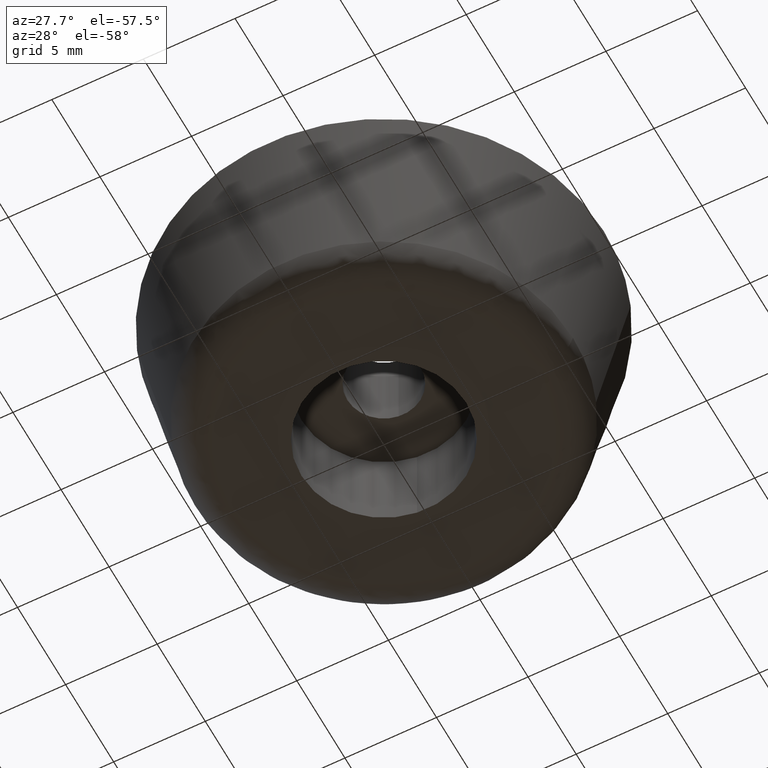
[diagram: clean part render]
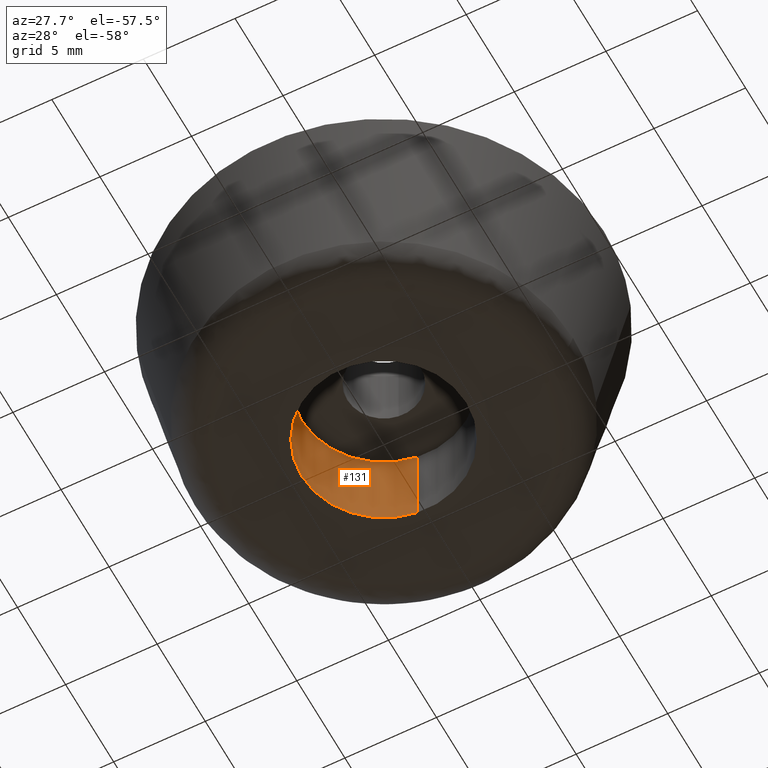
[diagram: same view with one face highlighted and labeled with its STEP entity id]
A machine part, auxiliary view. The second image highlights one B-rep face of the part: STEP entity #131.
In plain terms, the highlighted cylindrical surface (partial cylindrical patch) has radius 4.5 mm, axis along (-0, -0, 1).
Its self-contained STEP definition (entity closure, byte-faithful):
#131=ADVANCED_FACE('',(#329),#328,.F.);
#328=CYLINDRICAL_SURFACE('',#496,4.50000000000E+000);
#329=FACE_OUTER_BOUND('',#497,.T.);
#493=CARTESIAN_POINT('',(-1.43024926419E-014,-1.44938452987E-015,5.12500000000E+000));
#494=DIRECTION('',(-5.39249104633E-015,-6.40979302462E-016,1.00000000000E+000));
#495=DIRECTION('',(1.18034234657E-001,-9.93009526364E-001,-1.73549399149E-029));
#496=AXIS2_PLACEMENT_3D('',#493,#494,#495);
#497=EDGE_LOOP('',(#602,#603,#604,#605,#606,#607));
#602=ORIENTED_EDGE('',*,*,#627,.F.);
#603=ORIENTED_EDGE('',*,*,#629,.F.);
#604=ORIENTED_EDGE('',*,*,#661,.F.);
#605=ORIENTED_EDGE('',*,*,#632,.T.);
#606=ORIENTED_EDGE('',*,*,#634,.T.);
#607=ORIENTED_EDGE('',*,*,#662,.T.);
#627=EDGE_CURVE('',#792,#793,#794,.T.);
#629=EDGE_CURVE('',#800,#792,#807,.T.);
#632=EDGE_CURVE('',#827,#828,#829,.T.);
#634=EDGE_CURVE('',#828,#835,#842,.T.);
#661=EDGE_CURVE('',#827,#800,#1022,.T.);
#662=EDGE_CURVE('',#835,#793,#1028,.T.);
#792=VERTEX_POINT('',#1117);
#793=VERTEX_POINT('',#1118);
#794=CIRCLE('',#1122,4.50000000000E+000);
#800=VERTEX_POINT('',#1123);
#807=CIRCLE('',#1131,4.50000000000E+000);
#827=VERTEX_POINT('',#1142);
#828=VERTEX_POINT('',#1143);
#829=CIRCLE('',#1147,4.50000000000E+000);
#835=VERTEX_POINT('',#1148);
#842=CIRCLE('',#1156,4.50000000000E+000);
#1022=(BOUNDED_CURVE() B_SPLINE_CURVE(1,(#1267,#1268),.UNSPECIFIED.,.F.,.F.) B_SPLINE_CURVE_WITH_KNOTS((2,2),(8.33333383004E-002,9.16666664635E-001),.UNSPECIFIED.) CURVE() GEOMETRIC_REPRESENTATION_ITEM() RATIONAL_B_SPLINE_CURVE((1.00000000000E+000,1.00000000000E+000)) REPRESENTATION_ITEM('') );
#1028=(BOUNDED_CURVE() B_SPLINE_CURVE(1,(#1269,#1270),.UNSPECIFIED.,.F.,.F.) B_SPLINE_CURVE_WITH_KNOTS((2,2),(8.33333333334E-002,9.16666666667E-001),.UNSPECIFIED.) CURVE() GEOMETRIC_REPRESENTATION_ITEM() RATIONAL_B_SPLINE_CURVE((7.50000000000E-001,7.50000000000E-001)) REPRESENTATION_ITEM('') );
#1117=CARTESIAN_POINT('',(-4.49999999999E+000,-1.88334048956E-015,5.00000000000E+000));
#1118=CARTESIAN_POINT('',(-5.31926375409E-001,4.46845099907E+000,5.00000000000E+000));
#1119=CARTESIAN_POINT('',(3.38928884958E-012,-5.26245713672E-013,5.00000000000E+000));
#1120=DIRECTION('',(-9.86864910779E-016,6.28036983474E-016,-1.00000000000E+000));
#1121=DIRECTION('',(-1.00000000000E+000,1.16647432454E-013,9.86864910779E-016));
#1122=AXIS2_PLACEMENT_3D('',#1119,#1120,#1121);
#1123=CARTESIAN_POINT('',(5.31152421835E-001,-4.46854306287E+000,5.00000000000E+000));
#1128=CARTESIAN_POINT('',(3.38928884958E-012,-5.26245713672E-013,5.00000000000E+000));
#1129=DIRECTION('',(-9.86864910779E-016,6.28036983474E-016,-1.00000000000E+000));
#1130=DIRECTION('',(-1.00000000000E+000,1.16647432454E-013,9.86864910779E-016));
#1131=AXIS2_PLACEMENT_3D('',#1128,#1129,#1130);
#1142=CARTESIAN_POINT('',(5.31152421835E-001,-4.46854306287E+000,3.16386470465E-014));
#1143=CARTESIAN_POINT('',(-4.50000000000E+000,-2.22044604925E-016,2.88097717397E-013));
#1144=CARTESIAN_POINT('',(1.24344978758E-012,5.63993296510E-013,2.37307106866E-014));
#1145=DIRECTION('',(-5.87482237134E-014,-8.75278521733E-015,-1.00000000000E+000));
#1146=DIRECTION('',(-1.00000000000E+000,-1.24997234785E-013,5.87482237134E-014));
#1147=AXIS2_PLACEMENT_3D('',#1144,#1145,#1146);
#1148=CARTESIAN_POINT('',(-5.31926375409E-001,4.46845099908E+000,1.58690485392E-014));
#1153=CARTESIAN_POINT('',(1.24344978758E-012,5.63993296510E-013,2.37307106866E-014));
#1154=DIRECTION('',(-5.87482237134E-014,-8.75278521733E-015,-1.00000000000E+000));
#1155=DIRECTION('',(-1.00000000000E+000,-1.24997234785E-013,5.87482237134E-014));
#1156=AXIS2_PLACEMENT_3D('',#1153,#1154,#1155);
#1267=CARTESIAN_POINT('',(5.31154055955E-001,-4.46854286864E+000,2.98017681644E-008));
#1268=CARTESIAN_POINT('',(5.31154055955E-001,-4.46854286864E+000,4.99999998781E+000));
#1269=CARTESIAN_POINT('',(-5.31154055955E-001,4.46854286864E+000,1.14056912063E-013));
#1270=CARTESIAN_POINT('',(-5.31154055955E-001,4.46854286864E+000,5.00000000000E+000));